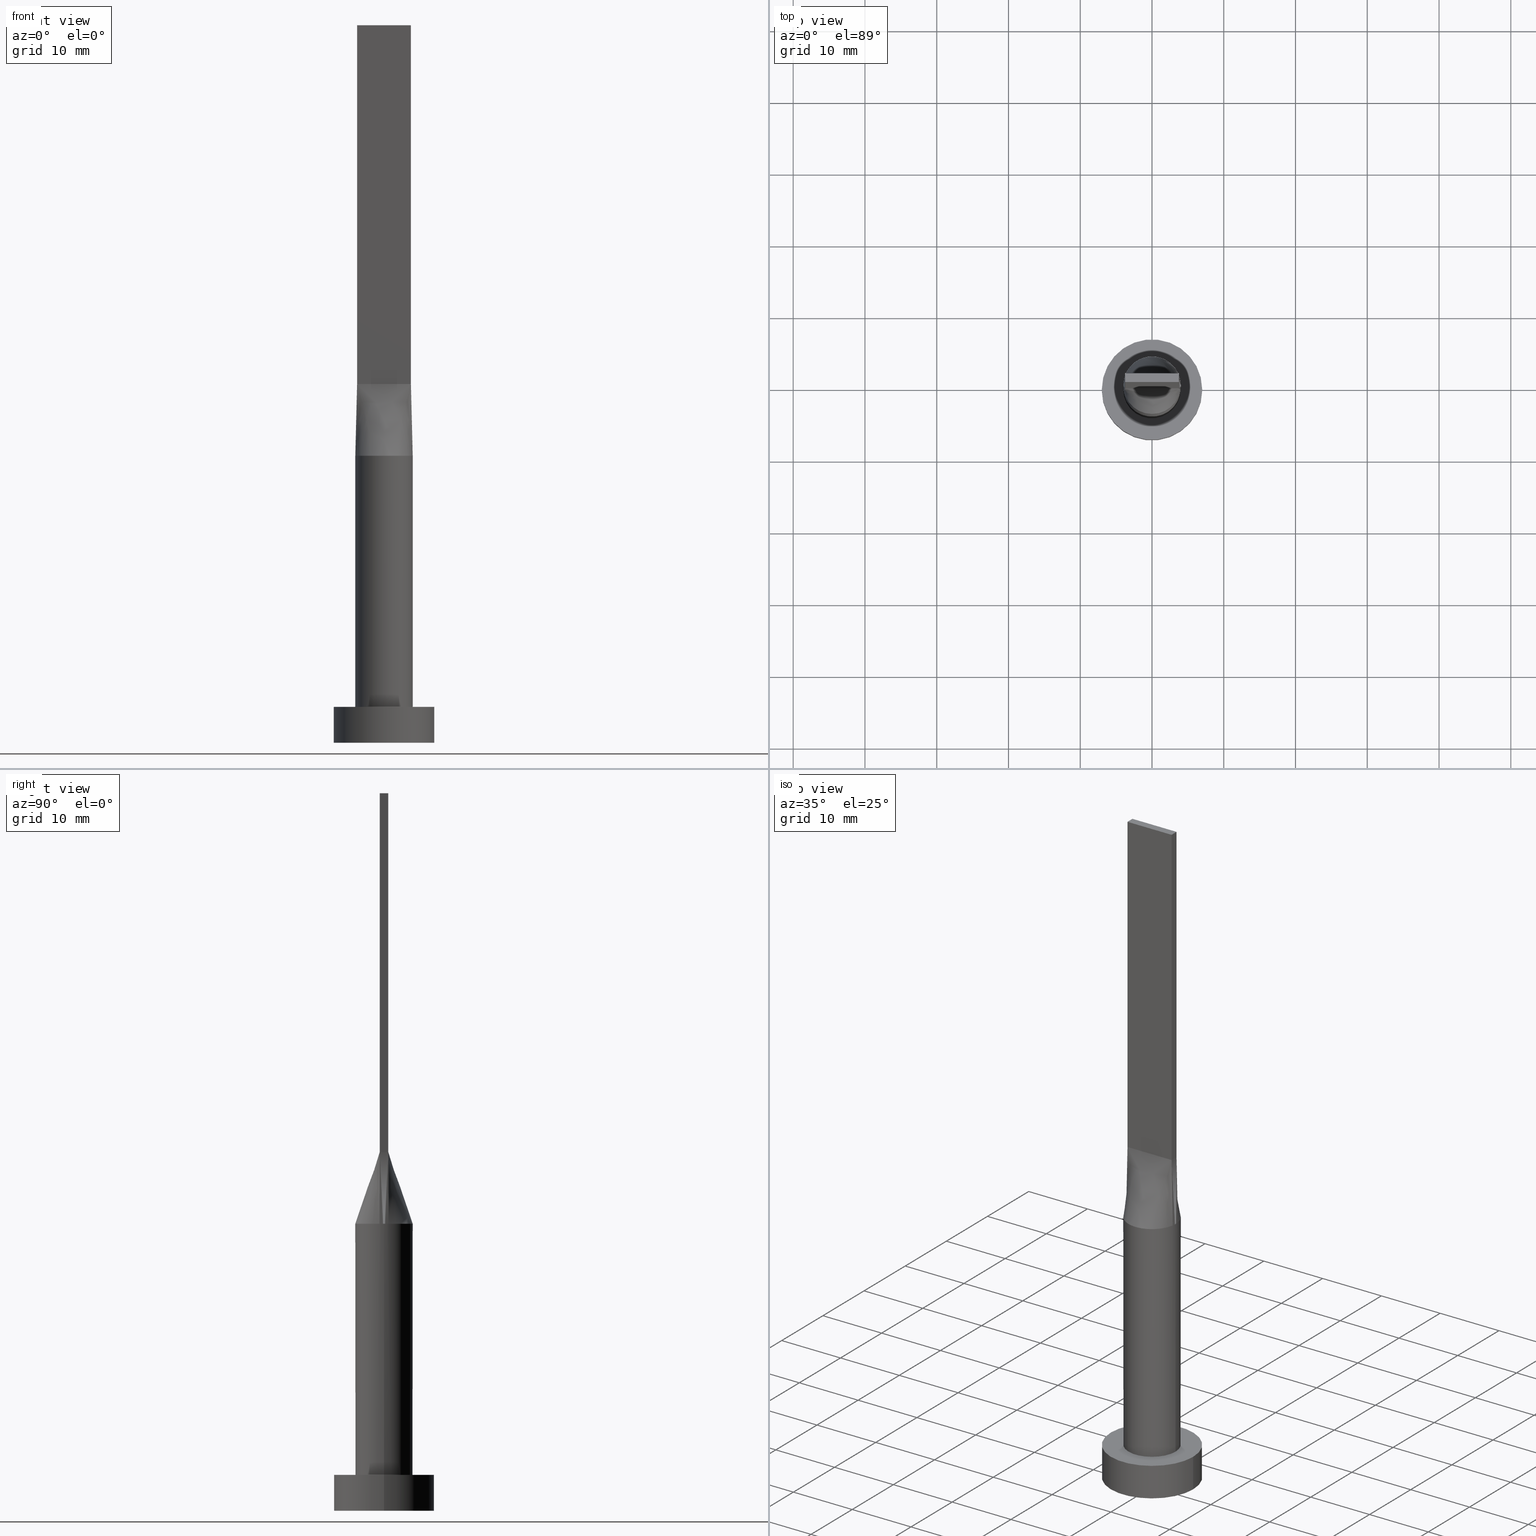
[diagram: canonical four-view strip — front | top / right | iso, engineering-drawing reading convention]
A machine part, canonical four-view strip (front | top / right | iso — engineering-drawing reading convention). The complete STEP part file that produces these views, byte-faithful:
ISO-10303-21;
HEADER;
FILE_DESCRIPTION (( 'STEP AP203' ),
    '1' );
FILE_NAME ('304e.STEP',
    '2023-02-13T09:38:19',
    ( '' ),
    ( '' ),
    'SwSTEP 2.0',
    'SolidWorks 2019',
    '' );
FILE_SCHEMA (( 'CONFIG_CONTROL_DESIGN' ));
ENDSEC;

DATA;
#1 = ORIENTED_EDGE ( 'NONE', *, *, #161, .F. ) ;
#2 = CARTESIAN_POINT ( 'NONE',  ( 3.461914487322979017, 2.043998057340944197, 40.00000000000000000 ) ) ;
#3 =( NAMED_UNIT ( * ) PLANE_ANGLE_UNIT ( ) SI_UNIT ( $, .RADIAN. ) );
#4 = CARTESIAN_POINT ( 'NONE',  ( -2.553164211252348714, 3.116528153703943538, 39.99999999999999289 ) ) ;
#5 = AXIS2_PLACEMENT_3D ( 'NONE', #193, #232, #409 ) ;
#6 = ORIENTED_EDGE ( 'NONE', *, *, #55, .T. ) ;
#7 = CARTESIAN_POINT ( 'NONE',  ( 0.000000000000000000, 0.000000000000000000, 5.000000000000000000 ) ) ;
#8 = CARTESIAN_POINT ( 'NONE',  ( 3.950116941581656604, -0.6320178829360038053, 40.00000000000000000 ) ) ;
#9 = ADVANCED_FACE ( 'NONE', ( #126 ), #31, .T. ) ;
#10 = EDGE_LOOP ( 'NONE', ( #465, #467, #66, #569 ) ) ;
#11 = DIRECTION ( 'NONE',  ( -0.000000000000000000, -0.000000000000000000, -1.000000000000000000 ) ) ;
#12 = EDGE_LOOP ( 'NONE', ( #28, #369, #140, #553, #338, #149 ) ) ;
#13 = CARTESIAN_POINT ( 'NONE',  ( 3.897760447583618948, 0.9569750049467118380, 40.00000000000000000 ) ) ;
#14 = CARTESIAN_POINT ( 'NONE',  ( 3.800365609718893367, -1.311488165564686614, 40.00000000000001421 ) ) ;
#15 = CIRCLE ( 'NONE', #56, 7.000000000000000000 ) ;
#16 = VERTEX_POINT ( 'NONE', #352 ) ;
#17 = FACE_OUTER_BOUND ( 'NONE', #10, .T. ) ;
#18 = EDGE_CURVE ( 'NONE', #109, #62, #484, .T. ) ;
#19 = CARTESIAN_POINT ( 'NONE',  ( 0.6250000000000017764, -0.5999999999999995337, 50.00000000000000000 ) ) ;
#20 = ORIENTED_EDGE ( 'NONE', *, *, #396, .F. ) ;
#21 = CARTESIAN_POINT ( 'NONE',  ( -2.553164211252349158, -3.116528153703943094, 40.00000000000000711 ) ) ;
#22 = SECURITY_CLASSIFICATION_LEVEL ( 'unclassified' ) ;
#23 = CARTESIAN_POINT ( 'NONE',  ( -3.999684524546696096, 0.2119768420469390069, 40.00000000000000000 ) ) ;
#24 = DIRECTION ( 'NONE',  ( -1.000000000000000000, 0.000000000000000000, 0.000000000000000000 ) ) ;
#25 = AXIS2_PLACEMENT_3D ( 'NONE', #70, #375, #515 ) ;
#26 = DIRECTION ( 'NONE',  ( -0.000000000000000000, 0.000000000000000000, -1.000000000000000000 ) ) ;
#27 = CARTESIAN_POINT ( 'NONE',  ( -3.461914487322979905, 2.043998057340944197, 40.00000000000000711 ) ) ;
#28 = ORIENTED_EDGE ( 'NONE', *, *, #289, .F. ) ;
#29 = DATE_AND_TIME ( #155, #292 ) ;
#30 = CARTESIAN_POINT ( 'NONE',  ( 0.000000000000000000, 0.000000000000000000, 0.000000000000000000 ) ) ;
#31 = CYLINDRICAL_SURFACE ( 'NONE', #154, 7.000000000000000000 ) ;
#32 = APPROVAL_DATE_TIME ( #523, #555 ) ;
#33 = CARTESIAN_POINT ( 'NONE',  ( 1.562499999999994893, 0.6000000000000000888, 50.00000000000000000 ) ) ;
#34 = AXIS2_PLACEMENT_3D ( 'NONE', #213, #529, #389 ) ;
#35 = CC_DESIGN_APPROVAL ( #495, ( #191 ) ) ;
#36 = CARTESIAN_POINT ( 'NONE',  ( 3.750000000000000000, 0.6000000000000001998, 100.0000000000000000 ) ) ;
#37 = CARTESIAN_POINT ( 'NONE',  ( 7.000000000000000000, 8.572527594031473190E-16, 0.000000000000000000 ) ) ;
#38 = VERTEX_POINT ( 'NONE', #346 ) ;
#39 = ORIENTED_EDGE ( 'NONE', *, *, #144, .F. ) ;
#40 = CARTESIAN_POINT ( 'NONE',  ( 3.750000000000000000, 0.6000000000000001998, 100.0000000000000000 ) ) ;
#41 = DIRECTION ( 'NONE',  ( 0.000000000000000000, 0.000000000000000000, 1.000000000000000000 ) ) ;
#42 = EDGE_CURVE ( 'NONE', #57, #52, #522, .T. ) ;
#43 = AXIS2_PLACEMENT_3D ( 'NONE', #79, #415, #539 ) ;
#44 = AXIS2_PLACEMENT_3D ( 'NONE', #344, #168, #525 ) ;
#45 = CARTESIAN_POINT ( 'NONE',  ( -3.750000000000000000, 0.6000000000000001998, 100.0000000000000000 ) ) ;
#46 = CC_DESIGN_SECURITY_CLASSIFICATION ( #272, ( #476 ) ) ;
#47 = CARTESIAN_POINT ( 'NONE',  ( 0.000000000000000000, 0.000000000000000000, 40.00000000000000000 ) ) ;
#48 = CARTESIAN_POINT ( 'NONE',  ( 3.897760447583618948, 0.9569750049467118380, 40.00000000000000000 ) ) ;
#49 = ORIENTED_EDGE ( 'NONE', *, *, #173, .F. ) ;
#50 = PERSON_AND_ORGANIZATION ( #83, #103 ) ;
#51 = CARTESIAN_POINT ( 'NONE',  ( 3.849881263833410561, -0.6159810022133445084, 45.00000000000000000 ) ) ;
#52 = VERTEX_POINT ( 'NONE', #215 ) ;
#53 = DIRECTION ( 'NONE',  ( 1.000000000000000000, 0.000000000000000000, -0.000000000000000000 ) ) ;
#54 = CARTESIAN_POINT ( 'NONE',  ( -3.750000000000000000, 0.6000000000000001998, 50.00000000000000000 ) ) ;
#55 = EDGE_CURVE ( 'NONE', #16, #458, #291, .T. ) ;
#56 = AXIS2_PLACEMENT_3D ( 'NONE', #223, #271, #455 ) ;
#57 = VERTEX_POINT ( 'NONE', #482 ) ;
#58 = PERSON_AND_ORGANIZATION ( #83, #103 ) ;
#59 = DIRECTION ( 'NONE',  ( -1.000000000000000000, 0.000000000000000000, 0.000000000000000000 ) ) ;
#60 = VERTEX_POINT ( 'NONE', #345 ) ;
#61 = CARTESIAN_POINT ( 'NONE',  ( 3.461914487322980349, -2.043998057340943753, 40.00000000000002842 ) ) ;
#62 = VERTEX_POINT ( 'NONE', #129 ) ;
#63 = EDGE_CURVE ( 'NONE', #243, #531, #395, .T. ) ;
#64 = PLANE ( 'NONE',  #255 ) ;
#65 = VECTOR ( 'NONE', #445, 1000.000000000000000 ) ;
#66 = ORIENTED_EDGE ( 'NONE', *, *, #365, .F. ) ;
#67 = CARTESIAN_POINT ( 'NONE',  ( -3.897760447583618948, -0.9569750049467102837, 40.00000000000000000 ) ) ;
#68 = PRODUCT_DEFINITION_SHAPE ( 'NONE', 'NONE',  #191 ) ;
#69 = ORIENTED_EDGE ( 'NONE', *, *, #18, .F. ) ;
#70 = CARTESIAN_POINT ( 'NONE',  ( 0.000000000000000000, 0.000000000000000000, 5.000000000000000000 ) ) ;
#71 = COORDINATED_UNIVERSAL_TIME_OFFSET ( 1, 0, .AHEAD. ) ;
#72 = CARTESIAN_POINT ( 'NONE',  ( 0.3124999999999934497, 0.6000000000000000888, 50.00000000000000711 ) ) ;
#73 = CARTESIAN_POINT ( 'NONE',  ( 0.3125000000000016098, -0.5999999999999995337, 50.00000000000000000 ) ) ;
#74 = EDGE_CURVE ( 'NONE', #38, #531, #399, .T. ) ;
#75 = CARTESIAN_POINT ( 'NONE',  ( -3.125000000000000888, 0.6000000000000000888, 50.00000000000000000 ) ) ;
#76 = CC_DESIGN_APPROVAL ( #182, ( #476 ) ) ;
#77 = DIRECTION ( 'NONE',  ( 0.000000000000000000, 0.000000000000000000, 1.000000000000000000 ) ) ;
#78 = CARTESIAN_POINT ( 'NONE',  ( -3.437500000000000444, 0.6000000000000000888, 50.00000000000000000 ) ) ;
#79 = CARTESIAN_POINT ( 'NONE',  ( 0.000000000000000000, 0.000000000000000000, 0.000000000000000000 ) ) ;
#80 = CC_DESIGN_DATE_AND_TIME_ASSIGNMENT ( #322, #132, ( #191 ) ) ;
#81 = DIRECTION ( 'NONE',  ( 0.000000000000000000, 0.000000000000000000, 1.000000000000000000 ) ) ;
#82 = CARTESIAN_POINT ( 'NONE',  ( -3.750000000000000000, -0.5999999999999993117, 50.00000000000000000 ) ) ;
#83 = PERSON ( 'NEUR�EN�', 'NEUR�EN�', 'NEUR�EN�', ('NEUR�EN�'), ('NEUR�EN�'), ('NEUR�EN�') ) ;
#84 = CARTESIAN_POINT ( 'NONE',  ( 2.499999999999996003, 0.6000000000000000888, 50.00000000000000000 ) ) ;
#85 = AXIS2_PLACEMENT_3D ( 'NONE', #544, #496, #189 ) ;
#86 = APPROVAL_PERSON_ORGANIZATION ( #313, #182, #152 ) ;
#87 = CARTESIAN_POINT ( 'NONE',  ( 4.000000000000000000, 4.898587196589412829E-16, 5.000000000000000000 ) ) ;
#88 = MECHANICAL_CONTEXT ( 'NONE', #127, 'mechanical' ) ;
#89 = PLANE ( 'NONE',  #363 ) ;
#90 = CARTESIAN_POINT ( 'NONE',  ( 3.949762527666821565, -0.6319620044266909265, 40.00000000000000000 ) ) ;
#91 = CC_DESIGN_PERSON_AND_ORGANIZATION_ASSIGNMENT ( #532, #362, ( #191 ) ) ;
#92 = ORIENTED_EDGE ( 'NONE', *, *, #546, .T. ) ;
#93 = DIRECTION ( 'NONE',  ( -0.000000000000000000, -0.000000000000000000, -1.000000000000000000 ) ) ;
#94 = VERTEX_POINT ( 'NONE', #87 ) ;
#95 = LINE ( 'NONE', #405, #373 ) ;
#96 = APPROVAL_PERSON_ORGANIZATION ( #50, #495, #534 ) ;
#97 = CARTESIAN_POINT ( 'NONE',  ( 2.553164211252348714, 3.116528153703943538, 40.00000000000000000 ) ) ;
#98 = CARTESIAN_POINT ( 'NONE',  ( -1.134810363096319996, 3.874001625491799938, 40.00000000000000711 ) ) ;
#99 = CC_DESIGN_PERSON_AND_ORGANIZATION_ASSIGNMENT ( #219, #397, ( #125 ) ) ;
#100 = CARTESIAN_POINT ( 'NONE',  ( 1.134810363096318664, 3.874001625491799050, 40.00000000000000000 ) ) ;
#101 = EDGE_LOOP ( 'NONE', ( #142, #221, #401, #240 ) ) ;
#102 = DIRECTION ( 'NONE',  ( -0.000000000000000000, -0.000000000000000000, -1.000000000000000000 ) ) ;
#103 = ORGANIZATION ( 'NEUR�EN�', 'NEUR�EN�', '' ) ;
#104 = ORIENTED_EDGE ( 'NONE', *, *, #254, .F. ) ;
#105 = PERSON_AND_ORGANIZATION_ROLE ( 'classification_officer' ) ;
#106 = CARTESIAN_POINT ( 'NONE',  ( 1.562500000000001776, -0.5999999999999996447, 50.00000000000000000 ) ) ;
#107 = ORIENTED_EDGE ( 'NONE', *, *, #228, .T. ) ;
#108 = CARTESIAN_POINT ( 'NONE',  ( -3.949762527666821565, -0.6319620044266894832, 40.00000000000000000 ) ) ;
#109 = VERTEX_POINT ( 'NONE', #574 ) ;
#110 = APPROVAL_STATUS ( 'not_yet_approved' ) ;
#111 = CARTESIAN_POINT ( 'NONE',  ( -7.000000000000000000, 0.000000000000000000, 5.000000000000000000 ) ) ;
#112 = VECTOR ( 'NONE', #153, 1000.000000000000000 ) ;
#113 = ORIENTED_EDGE ( 'NONE', *, *, #228, .F. ) ;
#114 = CYLINDRICAL_SURFACE ( 'NONE', #262, 7.000000000000000000 ) ;
#115 = CARTESIAN_POINT ( 'NONE',  ( -0.6249999999999978906, -0.5999999999999994227, 50.00000000000000000 ) ) ;
#116 = B_SPLINE_SURFACE_WITH_KNOTS ( 'NONE', 3, 1, ( 
 ( #90, #572 ),
 ( #356, #470 ),
 ( #443, #386 ),
 ( #177, #131 ),
 ( #312, #488 ),
 ( #577, #425 ) ),
 .UNSPECIFIED., .F., .F., .F.,
 ( 4, 2, 4 ),
 ( 2, 2 ),
 ( 0.000000000000000000, 0.5000000000000000000, 1.000000000000000000 ),
 ( 0.000000000000000000, 1.000000000000000000 ),
 .UNSPECIFIED. ) ;
#117 = CARTESIAN_POINT ( 'NONE',  ( -3.983043858920071845, 0.4239536840938776252, 40.00000000000000000 ) ) ;
#118 = EDGE_CURVE ( 'NONE', #450, #57, #257, .T. ) ;
#119 = PLANE ( 'NONE',  #225 ) ;
#120 = DIRECTION ( 'NONE',  ( 0.000000000000000000, -0.000000000000000000, -1.000000000000000000 ) ) ;
#121 = VECTOR ( 'NONE', #413, 1000.000000000000000 ) ;
#122 = AXIS2_PLACEMENT_3D ( 'NONE', #180, #444, #491 ) ;
#123 = CARTESIAN_POINT ( 'NONE',  ( -3.849881263833410561, -0.6159810022133443974, 45.00000000000000000 ) ) ;
#124 = ADVANCED_FACE ( 'NONE', ( #172 ), #116, .T. ) ;
#125 = PRODUCT ( '304e', '304e', '', ( #88 ) ) ;
#126 = FACE_OUTER_BOUND ( 'NONE', #359, .T. ) ;
#127 = APPLICATION_CONTEXT ( 'configuration controlled 3d designs of mechanical parts and assemblies' ) ;
#128 = CARTESIAN_POINT ( 'NONE',  ( -2.187500000000003109, 0.6000000000000000888, 50.00000000000000000 ) ) ;
#129 = CARTESIAN_POINT ( 'NONE',  ( 3.950097303404373150, 0.6320148730971616446, 40.00000000000000000 ) ) ;
#130 = AXIS2_PLACEMENT_3D ( 'NONE', #519, #306, #120 ) ;
#131 = CARTESIAN_POINT ( 'NONE',  ( 3.749999999999999556, 0.2000000000000007883, 50.00000000000000000 ) ) ;
#132 = DATE_TIME_ROLE ( 'creation_date' ) ;
#133 = CARTESIAN_POINT ( 'NONE',  ( 0.000000000000000000, 0.000000000000000000, 5.000000000000000000 ) ) ;
#134 = CARTESIAN_POINT ( 'NONE',  ( -3.750000000000000000, -0.5999999999999993117, 50.00000000000000000 ) ) ;
#135 = CIRCLE ( 'NONE', #44, 4.000000000000000000 ) ;
#136 = LINE ( 'NONE', #51, #121 ) ;
#137 = CC_DESIGN_DATE_AND_TIME_ASSIGNMENT ( #29, #308, ( #272 ) ) ;
#138 = CALENDAR_DATE ( 2023, 13, 2 ) ;
#139 = CARTESIAN_POINT ( 'NONE',  ( -2.127794970397209884, 3.430476893735948440, 39.99999999999999289 ) ) ;
#140 = ORIENTED_EDGE ( 'NONE', *, *, #527, .F. ) ;
#141 = LINE ( 'NONE', #326, #205 ) ;
#142 = ORIENTED_EDGE ( 'NONE', *, *, #527, .T. ) ;
#143 = DIRECTION ( 'NONE',  ( -1.000000000000000000, 0.000000000000000000, 0.000000000000000000 ) ) ;
#144 = EDGE_CURVE ( 'NONE', #243, #190, #520, .T. ) ;
#145 = CARTESIAN_POINT ( 'NONE',  ( -0.5684794080625156232, -4.000000000000000000, 39.99999999999999289 ) ) ;
#146 = AXIS2_PLACEMENT_3D ( 'NONE', #558, #464, #290 ) ;
#147 = ORIENTED_EDGE ( 'NONE', *, *, #55, .F. ) ;
#148 = CARTESIAN_POINT ( 'NONE',  ( 3.750000000000000000, -0.5999999999999997558, 100.0000000000000000 ) ) ;
#149 = ORIENTED_EDGE ( 'NONE', *, *, #334, .T. ) ;
#150 = PERSON_AND_ORGANIZATION_ROLE ( 'design_supplier' ) ;
#151 = VERTEX_POINT ( 'NONE', #479 ) ;
#152 = APPROVAL_ROLE ( '' ) ;
#153 = DIRECTION ( 'NONE',  ( 0.000000000000000000, 1.000000000000000000, 0.000000000000000000 ) ) ;
#154 = AXIS2_PLACEMENT_3D ( 'NONE', #307, #533, #485 ) ;
#155 = CALENDAR_DATE ( 2023, 13, 2 ) ;
#156 = CARTESIAN_POINT ( 'NONE',  ( -3.999684524546696096, -0.2119768420469381465, 40.00000000000000000 ) ) ;
#157 = DIRECTION ( 'NONE',  ( -0.000000000000000000, -0.000000000000000000, -1.000000000000000000 ) ) ;
#158 = CARTESIAN_POINT ( 'NONE',  ( -2.553164211252348714, 3.116528153703943538, 39.99999999999999289 ) ) ;
#159 = DIRECTION ( 'NONE',  ( 1.000000000000000000, 0.000000000000000000, -0.000000000000000000 ) ) ;
#160 = FACE_OUTER_BOUND ( 'NONE', #506, .T. ) ;
#161 = EDGE_CURVE ( 'NONE', #414, #556, #261, .T. ) ;
#162 = DIRECTION ( 'NONE',  ( 1.000000000000000000, 0.000000000000000000, 0.000000000000000000 ) ) ;
#163 = VECTOR ( 'NONE', #547, 1000.000000000000000 ) ;
#164 = CARTESIAN_POINT ( 'NONE',  ( -2.500000000000002665, 0.6000000000000000888, 50.00000000000000000 ) ) ;
#165 = ORIENTED_EDGE ( 'NONE', *, *, #118, .T. ) ;
#166 = CARTESIAN_POINT ( 'NONE',  ( 3.800365609718893367, 1.311488165564687058, 40.00000000000000711 ) ) ;
#167 = B_SPLINE_SURFACE_WITH_KNOTS ( 'NONE', 3, 1, ( 
 ( #108, #469 ),
 ( #67, #466 ),
 ( #431, #249 ),
 ( #207, #424 ),
 ( #339, #514 ),
 ( #21, #295 ),
 ( #297, #245 ),
 ( #204, #115 ),
 ( #145, #422 ),
 ( #284, #73 ),
 ( #472, #19 ),
 ( #342, #377 ),
 ( #505, #106 ),
 ( #199, #337 ),
 ( #61, #252 ),
 ( #14, #428 ),
 ( #381, #552 ),
 ( #561, #554 ) ),
 .UNSPECIFIED., .F., .F., .F.,
 ( 4, 2, 2, 2, 2, 2, 2, 2, 4 ),
 ( 2, 2 ),
 ( 0.000000000000000000, 0.1250000000000000555, 0.2500000000000001110, 0.3750000000000001665, 0.5000000000000001110, 0.6250000000000001110, 0.7500000000000001110, 0.8750000000000000000, 1.000000000000000000 ),
 ( 0.000000000000000000, 1.000000000000000000 ),
 .UNSPECIFIED. ) ;
#168 = DIRECTION ( 'NONE',  ( 0.000000000000000000, 0.000000000000000000, 1.000000000000000000 ) ) ;
#169 = EDGE_LOOP ( 'NONE', ( #260, #420, #20, #499 ) ) ;
#170 = EDGE_LOOP ( 'NONE', ( #69, #462, #423, #194, #404, #104 ) ) ;
#171 = APPLICATION_CONTEXT ( 'configuration controlled 3d designs of mechanical parts and assemblies' ) ;
#172 = FACE_OUTER_BOUND ( 'NONE', #350, .T. ) ;
#173 = EDGE_CURVE ( 'NONE', #222, #243, #323, .T. ) ;
#174 = DATE_AND_TIME ( #183, #319 ) ;
#175 = VECTOR ( 'NONE', #250, 1000.000000000000000 ) ;
#176 = CC_DESIGN_APPROVAL ( #555, ( #272 ) ) ;
#177 = CARTESIAN_POINT ( 'NONE',  ( 3.999684524546696540, 0.2119768420469383408, 40.00000000000000000 ) ) ;
#178 = ORIENTED_EDGE ( 'NONE', *, *, #365, .T. ) ;
#179 = CARTESIAN_POINT ( 'NONE',  ( 3.219262664220058134, 2.422342486356523938, 39.99999999999999289 ) ) ;
#180 = CARTESIAN_POINT ( 'NONE',  ( 0.000000000000000000, 0.000000000000000000, 0.000000000000000000 ) ) ;
#181 = CARTESIAN_POINT ( 'NONE',  ( 2.127794970397208107, 3.430476893735948885, 39.99999999999999289 ) ) ;
#182 = APPROVAL ( #110, 'NEUR�EN�' ) ;
#183 = CALENDAR_DATE ( 2023, 13, 2 ) ;
#184 = VECTOR ( 'NONE', #309, 1000.000000000000000 ) ;
#185 = VECTOR ( 'NONE', #481, 1000.000000000000000 ) ;
#186 = DIRECTION ( 'NONE',  ( 0.000000000000000000, 0.000000000000000000, 1.000000000000000000 ) ) ;
#187 = EDGE_LOOP ( 'NONE', ( #324, #579, #335, #165 ) ) ;
#188 = PLANE ( 'NONE',  #383 ) ;
#189 = DIRECTION ( 'NONE',  ( 1.000000000000000000, 0.000000000000000000, 0.000000000000000000 ) ) ;
#190 = VERTEX_POINT ( 'NONE', #451 ) ;
#191 = PRODUCT_DEFINITION ( 'NEZN�M�', '', #476, #408 ) ;
#192 = CARTESIAN_POINT ( 'NONE',  ( 3.750000000000000000, -0.5999999999999997558, 100.0000000000000000 ) ) ;
#193 = CARTESIAN_POINT ( 'NONE',  ( 0.000000000000000000, 0.000000000000000000, 0.000000000000000000 ) ) ;
#194 = ORIENTED_EDGE ( 'NONE', *, *, #536, .F. ) ;
#195 = CARTESIAN_POINT ( 'NONE',  ( 3.437499999999998668, 0.6000000000000001998, 50.00000000000000000 ) ) ;
#196 = LINE ( 'NONE', #148, #112 ) ;
#197 = EDGE_LOOP ( 'NONE', ( #502, #49, #331, #446 ) ) ;
#198 = PERSON_AND_ORGANIZATION ( #83, #103 ) ;
#199 = CARTESIAN_POINT ( 'NONE',  ( 3.219262664220059023, -2.422342486356523938, 40.00000000000000711 ) ) ;
#200 = ORIENTED_EDGE ( 'NONE', *, *, #270, .T. ) ;
#201 = DIRECTION ( 'NONE',  ( -1.000000000000000000, 0.000000000000000000, 0.000000000000000000 ) ) ;
#202 = ADVANCED_FACE ( 'NONE', ( #235 ), #358, .T. ) ;
#203 = DIRECTION ( 'NONE',  ( -0.000000000000000000, -0.000000000000000000, -1.000000000000000000 ) ) ;
#204 = CARTESIAN_POINT ( 'NONE',  ( -1.134810363096319996, -3.874001625491796830, 39.99999999999999289 ) ) ;
#205 = VECTOR ( 'NONE', #102, 1000.000000000000000 ) ;
#206 = CIRCLE ( 'NONE', #25, 4.000000000000000000 ) ;
#207 = CARTESIAN_POINT ( 'NONE',  ( -3.461914487322979905, -2.043998057340941976, 40.00000000000000000 ) ) ;
#208 = CC_DESIGN_PERSON_AND_ORGANIZATION_ASSIGNMENT ( #58, #105, ( #272 ) ) ;
#209 = CARTESIAN_POINT ( 'NONE',  ( 1.134810363096318664, 3.874001625491799050, 40.00000000000000000 ) ) ;
#210 = CARTESIAN_POINT ( 'NONE',  ( -3.750000000000000000, 0.6000000000000001998, 50.00000000000000000 ) ) ;
#211 = CARTESIAN_POINT ( 'NONE',  ( 2.127794970397208107, 3.430476893735948885, 39.99999999999999289 ) ) ;
#212 = DIRECTION ( 'NONE',  ( -0.000000000000000000, 1.000000000000000000, -0.000000000000000000 ) ) ;
#213 = CARTESIAN_POINT ( 'NONE',  ( 0.000000000000000000, 0.000000000000000000, 40.00000000000000000 ) ) ;
#214 = CARTESIAN_POINT ( 'NONE',  ( -1.250000000000004663, 0.6000000000000000888, 50.00000000000000000 ) ) ;
#215 = CARTESIAN_POINT ( 'NONE',  ( -3.750000000000000000, 0.6000000000000001998, 50.00000000000000000 ) ) ;
#216 = CARTESIAN_POINT ( 'NONE',  ( 2.187499999999996003, 0.6000000000000000888, 50.00000000000000000 ) ) ;
#217 = EDGE_LOOP ( 'NONE', ( #510, #200, #39, #279, #293 ) ) ;
#218 = ADVANCED_FACE ( 'NONE', ( #314 ), #229, .T. ) ;
#219 = PERSON_AND_ORGANIZATION ( #83, #103 ) ;
#220 = PLANE ( 'NONE',  #130 ) ;
#221 = ORIENTED_EDGE ( 'NONE', *, *, #248, .T. ) ;
#222 = VERTEX_POINT ( 'NONE', #498 ) ;
#223 = CARTESIAN_POINT ( 'NONE',  ( 0.000000000000000000, 0.000000000000000000, 5.000000000000000000 ) ) ;
#224 = VECTOR ( 'NONE', #439, 1000.000000000000000 ) ;
#225 = AXIS2_PLACEMENT_3D ( 'NONE', #380, #474, #26 ) ;
#226 = DIRECTION ( 'NONE',  ( 0.01997216621675832263, -0.003195546594681204517, 0.9997954296047624201 ) ) ;
#227 = DIRECTION ( 'NONE',  ( 0.000000000000000000, 0.000000000000000000, 1.000000000000000000 ) ) ;
#228 = EDGE_CURVE ( 'NONE', #556, #414, #317, .T. ) ;
#229 = CYLINDRICAL_SURFACE ( 'NONE', #421, 4.000000000000000000 ) ;
#230 = VERTEX_POINT ( 'NONE', #456 ) ;
#231 = APPROVAL_STATUS ( 'not_yet_approved' ) ;
#232 = DIRECTION ( 'NONE',  ( 0.000000000000000000, 0.000000000000000000, 1.000000000000000000 ) ) ;
#233 = ORIENTED_EDGE ( 'NONE', *, *, #396, .T. ) ;
#234 = VECTOR ( 'NONE', #226, 1000.000000000000000 ) ;
#235 = FACE_OUTER_BOUND ( 'NONE', #351, .T. ) ;
#236 = ORIENTED_EDGE ( 'NONE', *, *, #18, .T. ) ;
#237 = CARTESIAN_POINT ( 'NONE',  ( -3.750000000000000000, -0.5999999999999993117, 50.00000000000000000 ) ) ;
#238 = LINE ( 'NONE', #45, #459 ) ;
#239 = EDGE_CURVE ( 'NONE', #52, #243, #535, .T. ) ;
#240 = ORIENTED_EDGE ( 'NONE', *, *, #144, .T. ) ;
#241 = CARTESIAN_POINT ( 'NONE',  ( 3.949762527666821565, 0.6319620044266911485, 40.00000000000000000 ) ) ;
#242 = CARTESIAN_POINT ( 'NONE',  ( -3.750000000000000000, -0.5999999999999993117, 100.0000000000000000 ) ) ;
#243 = VERTEX_POINT ( 'NONE', #134 ) ;
#244 = DATE_AND_TIME ( #511, #540 ) ;
#245 = CARTESIAN_POINT ( 'NONE',  ( -1.249999999999997558, -0.5999999999999994227, 50.00000000000000000 ) ) ;
#246 = VECTOR ( 'NONE', #212, 1000.000000000000000 ) ;
#247 = ORIENTED_EDGE ( 'NONE', *, *, #546, .F. ) ;
#248 = EDGE_CURVE ( 'NONE', #267, #531, #136, .T. ) ;
#249 = CARTESIAN_POINT ( 'NONE',  ( -3.124999999999999112, -0.5999999999999993117, 50.00000000000000000 ) ) ;
#250 = DIRECTION ( 'NONE',  ( -1.000000000000000000, -0.000000000000000000, -0.000000000000000000 ) ) ;
#251 = CARTESIAN_POINT ( 'NONE',  ( -3.949762527666821565, 0.6319620044266903713, 40.00000000000000000 ) ) ;
#252 = CARTESIAN_POINT ( 'NONE',  ( 2.500000000000000444, -0.5999999999999996447, 50.00000000000000000 ) ) ;
#253 = FACE_OUTER_BOUND ( 'NONE', #101, .T. ) ;
#254 = EDGE_CURVE ( 'NONE', #62, #230, #494, .T. ) ;
#255 = AXIS2_PLACEMENT_3D ( 'NONE', #242, #507, #286 ) ;
#256 = CARTESIAN_POINT ( 'NONE',  ( 7.000000000000000000, 8.572527594031473190E-16, 5.000000000000000000 ) ) ;
#257 = LINE ( 'NONE', #36, #549 ) ;
#258 = APPROVAL_STATUS ( 'not_yet_approved' ) ;
#259 = CARTESIAN_POINT ( 'NONE',  ( -3.750000000000000000, 0.6000000000000001998, 100.0000000000000000 ) ) ;
#260 = ORIENTED_EDGE ( 'NONE', *, *, #63, .T. ) ;
#261 = CIRCLE ( 'NONE', #43, 7.000000000000000000 ) ;
#262 = AXIS2_PLACEMENT_3D ( 'NONE', #328, #203, #201 ) ;
#263 = CARTESIAN_POINT ( 'NONE',  ( -0.6250000000000056621, 0.6000000000000000888, 50.00000000000000000 ) ) ;
#264 = DIRECTION ( 'NONE',  ( -0.000000000000000000, -0.000000000000000000, -1.000000000000000000 ) ) ;
#265 = LINE ( 'NONE', #571, #65 ) ;
#266 = ORIENTED_EDGE ( 'NONE', *, *, #315, .T. ) ;
#267 = VERTEX_POINT ( 'NONE', #8 ) ;
#268 = CARTESIAN_POINT ( 'NONE',  ( -3.750000000000000000, 0.6000000000000001998, 50.00000000000000000 ) ) ;
#269 = LINE ( 'NONE', #449, #234 ) ;
#270 = EDGE_CURVE ( 'NONE', #60, #190, #457, .T. ) ;
#271 = DIRECTION ( 'NONE',  ( 0.000000000000000000, 0.000000000000000000, 1.000000000000000000 ) ) ;
#272 = SECURITY_CLASSIFICATION ( '', '', #22 ) ;
#273 = CARTESIAN_POINT ( 'NONE',  ( -3.461914487322979905, 2.043998057340944197, 40.00000000000000711 ) ) ;
#274 = ORIENTED_EDGE ( 'NONE', *, *, #384, .T. ) ;
#275 = APPLICATION_PROTOCOL_DEFINITION ( 'international standard', 'config_control_design', 1994, #127 ) ;
#276 = CYLINDRICAL_SURFACE ( 'NONE', #503, 4.000000000000000000 ) ;
#277 =( NAMED_UNIT ( * ) SI_UNIT ( $, .STERADIAN. ) SOLID_ANGLE_UNIT ( ) );
#278 = CARTESIAN_POINT ( 'NONE',  ( -3.897760447583618504, 0.9569750049467115049, 40.00000000000000000 ) ) ;
#279 = ORIENTED_EDGE ( 'NONE', *, *, #239, .F. ) ;
#280 = APPROVAL_DATE_TIME ( #244, #182 ) ;
#281 = CARTESIAN_POINT ( 'NONE',  ( -3.750000000000000000, -0.5999999999999993117, 100.0000000000000000 ) ) ;
#282 = ADVANCED_FACE ( 'NONE', ( #371 ), #276, .T. ) ;
#283 = ORIENTED_EDGE ( 'NONE', *, *, #384, .F. ) ;
#284 = CARTESIAN_POINT ( 'NONE',  ( 0.5684794080625150681, -4.000000000000000888, 40.00000000000000000 ) ) ;
#285 = ORIENTED_EDGE ( 'NONE', *, *, #42, .F. ) ;
#286 = DIRECTION ( 'NONE',  ( -1.000000000000000000, 5.782411586589358625E-17, 0.000000000000000000 ) ) ;
#287 = EDGE_LOOP ( 'NONE', ( #6, #92 ) ) ;
#288 = COORDINATED_UNIVERSAL_TIME_OFFSET ( 1, 0, .AHEAD. ) ;
#289 = EDGE_CURVE ( 'NONE', #109, #94, #141, .T. ) ;
#291 = CIRCLE ( 'NONE', #548, 7.000000000000000000 ) ;
#290 = DIRECTION ( 'NONE',  ( 1.000000000000000000, 0.000000000000000000, 0.000000000000000000 ) ) ;
#292 = LOCAL_TIME ( 10, 38, 19.00000000000000000, #288 ) ;
#293 = ORIENTED_EDGE ( 'NONE', *, *, #315, .F. ) ;
#294 = FACE_OUTER_BOUND ( 'NONE', #217, .T. ) ;
#295 = CARTESIAN_POINT ( 'NONE',  ( -1.562499999999998002, -0.5999999999999994227, 50.00000000000000000 ) ) ;
#296 = CARTESIAN_POINT ( 'NONE',  ( -3.983043858920070956, -0.4239536840938767370, 40.00000000000000000 ) ) ;
#297 = CARTESIAN_POINT ( 'NONE',  ( -2.127794970397209884, -3.430476893735947996, 40.00000000000000000 ) ) ;
#298 = EDGE_CURVE ( 'NONE', #437, #52, #238, .T. ) ;
#299 = CARTESIAN_POINT ( 'NONE',  ( -3.800365609718893811, 1.311488165564686392, 40.00000000000000000 ) ) ;
#300 = CARTESIAN_POINT ( 'NONE',  ( 3.849881263833410561, 0.6159810022133449525, 45.00000000000000000 ) ) ;
#301 = VECTOR ( 'NONE', #303, 1000.000000000000000 ) ;
#302 = CIRCLE ( 'NONE', #329, 4.000000000000000000 ) ;
#303 = DIRECTION ( 'NONE',  ( -0.01997216621675832263, -0.003195546594681204517, -0.9997954296047624201 ) ) ;
#304 = CALENDAR_DATE ( 2023, 13, 2 ) ;
#305 = CARTESIAN_POINT ( 'NONE',  ( -0.3125000000000063283, 0.6000000000000000888, 50.00000000000000711 ) ) ;
#306 = DIRECTION ( 'NONE',  ( 0.000000000000000000, -1.000000000000000000, 0.000000000000000000 ) ) ;
#307 = CARTESIAN_POINT ( 'NONE',  ( 0.000000000000000000, 0.000000000000000000, 5.000000000000000000 ) ) ;
#308 = DATE_TIME_ROLE ( 'classification_date' ) ;
#309 = DIRECTION ( 'NONE',  ( 1.000000000000000000, -5.782411586589357392E-17, 0.000000000000000000 ) ) ;
#310 = CARTESIAN_POINT ( 'NONE',  ( 0.6249999999999938938, 0.6000000000000000888, 50.00000000000000000 ) ) ;
#311 = FACE_OUTER_BOUND ( 'NONE', #411, .T. ) ;
#312 = CARTESIAN_POINT ( 'NONE',  ( 3.983043858920071845, 0.4239536840938771811, 40.00000000000000000 ) ) ;
#313 = PERSON_AND_ORGANIZATION ( #83, #103 ) ;
#314 = FACE_OUTER_BOUND ( 'NONE', #12, .T. ) ;
#315 = EDGE_CURVE ( 'NONE', #230, #52, #269, .T. ) ;
#316 = CARTESIAN_POINT ( 'NONE',  ( -0.5684794080625158452, 3.999999999999999112, 39.99999999999999289 ) ) ;
#317 = CIRCLE ( 'NONE', #5, 7.000000000000000000 ) ;
#318 = DIRECTION ( 'NONE',  ( -0.000000000000000000, -0.000000000000000000, -1.000000000000000000 ) ) ;
#319 = LOCAL_TIME ( 10, 38, 19.00000000000000000, #541 ) ;
#320 = CARTESIAN_POINT ( 'NONE',  ( -3.800365609718893811, 1.311488165564686392, 40.00000000000000000 ) ) ;
#321 = ADVANCED_BREP_SHAPE_REPRESENTATION ( '304e', ( #430, #122 ), #341 ) ;
#322 = DATE_AND_TIME ( #138, #513 ) ;
#323 = LINE ( 'NONE', #281, #163 ) ;
#324 = ORIENTED_EDGE ( 'NONE', *, *, #42, .T. ) ;
#325 = ADVANCED_FACE ( 'NONE', ( #330 ), #64, .F. ) ;
#326 = CARTESIAN_POINT ( 'NONE',  ( 4.000000000000000000, 4.898587196589412829E-16, 40.00000000000000000 ) ) ;
#327 = ORIENTED_EDGE ( 'NONE', *, *, #471, .F. ) ;
#328 = CARTESIAN_POINT ( 'NONE',  ( 0.000000000000000000, 0.000000000000000000, 5.000000000000000000 ) ) ;
#329 = AXIS2_PLACEMENT_3D ( 'NONE', #475, #77, #391 ) ;
#330 = FACE_OUTER_BOUND ( 'NONE', #169, .T. ) ;
#331 = ORIENTED_EDGE ( 'NONE', *, *, #447, .F. ) ;
#332 = CARTESIAN_POINT ( 'NONE',  ( -3.750000000000000000, 0.6000000000000001998, 50.00000000000000000 ) ) ;
#333 = LINE ( 'NONE', #385, #390 ) ;
#334 = EDGE_CURVE ( 'NONE', #151, #94, #206, .T. ) ;
#335 = ORIENTED_EDGE ( 'NONE', *, *, #355, .F. ) ;
#336 = COORDINATED_UNIVERSAL_TIME_OFFSET ( 1, 0, .AHEAD. ) ;
#337 = CARTESIAN_POINT ( 'NONE',  ( 2.187500000000000888, -0.5999999999999996447, 50.00000000000000000 ) ) ;
#338 = ORIENTED_EDGE ( 'NONE', *, *, #536, .T. ) ;
#340 = VECTOR ( 'NONE', #581, 1000.000000000000000 ) ;
#339 = CARTESIAN_POINT ( 'NONE',  ( -3.219262664220059023, -2.422342486356523050, 39.99999999999999289 ) ) ;
#341 =( GEOMETRIC_REPRESENTATION_CONTEXT ( 3 ) GLOBAL_UNCERTAINTY_ASSIGNED_CONTEXT ( ( #500 ) ) GLOBAL_UNIT_ASSIGNED_CONTEXT ( ( #538, #3, #277 ) ) REPRESENTATION_CONTEXT ( 'NONE', 'WORKASPACE' ) );
#342 = CARTESIAN_POINT ( 'NONE',  ( 2.127794970397208552, -3.430476893735948440, 39.99999999999999289 ) ) ;
#343 = EDGE_CURVE ( 'NONE', #230, #60, #493, .T. ) ;
#344 = CARTESIAN_POINT ( 'NONE',  ( 0.000000000000000000, 0.000000000000000000, 40.00000000000000000 ) ) ;
#345 = CARTESIAN_POINT ( 'NONE',  ( -3.999842262273348048, -9.740943882706926662E-16, 40.00000000000000000 ) ) ;
#346 = CARTESIAN_POINT ( 'NONE',  ( 3.750000000000000000, -0.5999999999999997558, 100.0000000000000000 ) ) ;
#347 = ADVANCED_FACE ( 'NONE', ( #419 ), #119, .F. ) ;
#348 = PERSON_AND_ORGANIZATION ( #83, #103 ) ;
#349 = CARTESIAN_POINT ( 'NONE',  ( 1.249999999999994671, 0.6000000000000000888, 50.00000000000000000 ) ) ;
#350 = EDGE_LOOP ( 'NONE', ( #508, #236, #376, #452, #543 ) ) ;
#351 = EDGE_LOOP ( 'NONE', ( #378, #575, #233, #178 ) ) ;
#352 = CARTESIAN_POINT ( 'NONE',  ( -7.000000000000000000, 0.000000000000000000, 5.000000000000000000 ) ) ;
#353 = VECTOR ( 'NONE', #434, 1000.000000000000000 ) ;
#354 = APPROVAL_DATE_TIME ( #174, #495 ) ;
#355 = EDGE_CURVE ( 'NONE', #450, #437, #333, .T. ) ;
#356 = CARTESIAN_POINT ( 'NONE',  ( 3.983043858920071845, -0.4239536840938781248, 40.00000000000000000 ) ) ;
#357 = DIRECTION ( 'NONE',  ( 1.000000000000000000, 0.000000000000000000, 0.000000000000000000 ) ) ;
#358 = PLANE ( 'NONE',  #382 ) ;
#359 = EDGE_LOOP ( 'NONE', ( #567, #147, #274, #107 ) ) ;
#360 = FACE_BOUND ( 'NONE', #416, .T. ) ;
#361 = CARTESIAN_POINT ( 'NONE',  ( -3.950102418235696522, 0.6320155757311002320, 40.00000000000000000 ) ) ;
#362 = PERSON_AND_ORGANIZATION_ROLE ( 'creator' ) ;
#363 = AXIS2_PLACEMENT_3D ( 'NONE', #30, #81, #159 ) ;
#364 = DIRECTION ( 'NONE',  ( 1.000000000000000000, 0.000000000000000000, -0.000000000000000000 ) ) ;
#365 = EDGE_CURVE ( 'NONE', #38, #450, #196, .T. ) ;
#366 = ORIENTED_EDGE ( 'NONE', *, *, #334, .F. ) ;
#367 = LINE ( 'NONE', #407, #433 ) ;
#368 = CARTESIAN_POINT ( 'NONE',  ( 3.800365609718893367, 1.311488165564687058, 40.00000000000000711 ) ) ;
#369 = ORIENTED_EDGE ( 'NONE', *, *, #461, .F. ) ;
#370 = CARTESIAN_POINT ( 'NONE',  ( -3.749999999999999556, -0.2000000000000034805, 50.00000000000000000 ) ) ;
#371 = FACE_OUTER_BOUND ( 'NONE', #170, .T. ) ;
#372 = ORIENTED_EDGE ( 'NONE', *, *, #254, .T. ) ;
#373 = VECTOR ( 'NONE', #318, 1000.000000000000000 ) ;
#374 = ADVANCED_FACE ( 'NONE', ( #253 ), #167, .T. ) ;
#375 = DIRECTION ( 'NONE',  ( 0.000000000000000000, 0.000000000000000000, 1.000000000000000000 ) ) ;
#376 = ORIENTED_EDGE ( 'NONE', *, *, #471, .T. ) ;
#377 = CARTESIAN_POINT ( 'NONE',  ( 1.250000000000001998, -0.5999999999999996447, 50.00000000000000000 ) ) ;
#378 = ORIENTED_EDGE ( 'NONE', *, *, #355, .T. ) ;
#379 = PLANE ( 'NONE',  #560 ) ;
#380 = CARTESIAN_POINT ( 'NONE',  ( -3.750000000000000000, 0.6000000000000001998, 100.0000000000000000 ) ) ;
#382 = AXIS2_PLACEMENT_3D ( 'NONE', #406, #186, #364 ) ;
#381 = CARTESIAN_POINT ( 'NONE',  ( 3.897760447583619836, -0.9569750049467118380, 40.00000000000000000 ) ) ;
#383 = AXIS2_PLACEMENT_3D ( 'NONE', #7, #227, #53 ) ;
#384 = EDGE_CURVE ( 'NONE', #16, #556, #509, .T. ) ;
#385 = CARTESIAN_POINT ( 'NONE',  ( 3.750000000000000000, 0.6000000000000001998, 100.0000000000000000 ) ) ;
#386 = CARTESIAN_POINT ( 'NONE',  ( 3.749999999999999556, -0.1999999999999991784, 50.00000000000000000 ) ) ;
#387 = CARTESIAN_POINT ( 'NONE',  ( 0.5684794080625145130, 4.000000000000000000, 39.99999999999999289 ) ) ;
#388 = ADVANCED_FACE ( 'NONE', ( #436 ), #220, .F. ) ;
#389 = DIRECTION ( 'NONE',  ( 1.000000000000000000, 0.000000000000000000, 0.000000000000000000 ) ) ;
#390 = VECTOR ( 'NONE', #24, 1000.000000000000000 ) ;
#391 = DIRECTION ( 'NONE',  ( 1.000000000000000000, 0.000000000000000000, 0.000000000000000000 ) ) ;
#392 = CARTESIAN_POINT ( 'NONE',  ( 3.750000000000000000, -0.5999999999999997558, 100.0000000000000000 ) ) ;
#393 = B_SPLINE_SURFACE_WITH_KNOTS ( 'NONE', 3, 1, ( 
 ( #251, #332 ),
 ( #117, #427 ),
 ( #23, #559 ),
 ( #156, #370 ),
 ( #296, #473 ),
 ( #504, #237 ) ),
 .UNSPECIFIED., .F., .F., .F.,
 ( 4, 2, 4 ),
 ( 2, 2 ),
 ( 0.000000000000000000, 0.5000000000000000000, 1.000000000000000000 ),
 ( 0.000000000000000000, 1.000000000000000000 ),
 .UNSPECIFIED. ) ;
#394 = SHAPE_DEFINITION_REPRESENTATION ( #68, #321 ) ;
#395 = LINE ( 'NONE', #82, #184 ) ;
#396 = EDGE_CURVE ( 'NONE', #222, #38, #442, .T. ) ;
#397 = PERSON_AND_ORGANIZATION_ROLE ( 'design_owner' ) ;
#398 = B_SPLINE_SURFACE_WITH_KNOTS ( 'NONE', 3, 1, ( 
 ( #241, #418 ),
 ( #13, #195 ),
 ( #166, #528 ),
 ( #570, #84 ),
 ( #563, #216 ),
 ( #438, #33 ),
 ( #211, #349 ),
 ( #209, #310 ),
 ( #387, #72 ),
 ( #568, #305 ),
 ( #480, #263 ),
 ( #441, #214 ),
 ( #158, #565 ),
 ( #524, #128 ),
 ( #27, #164 ),
 ( #299, #75 ),
 ( #518, #78 ),
 ( #521, #268 ) ),
 .UNSPECIFIED., .F., .F., .F.,
 ( 4, 2, 2, 2, 2, 2, 2, 2, 4 ),
 ( 2, 2 ),
 ( 0.000000000000000000, 0.1249999999999999445, 0.2499999999999998890, 0.3749999999999998335, 0.4999999999999997780, 0.6249999999999997780, 0.7499999999999998890, 0.8749999999999998890, 1.000000000000000000 ),
 ( 0.000000000000000000, 1.000000000000000000 ),
 .UNSPECIFIED. ) ;
#399 = LINE ( 'NONE', #392, #224 ) ;
#400 = LOCAL_TIME ( 10, 38, 19.00000000000000000, #71 ) ;
#401 = ORIENTED_EDGE ( 'NONE', *, *, #63, .F. ) ;
#402 = FACE_OUTER_BOUND ( 'NONE', #287, .T. ) ;
#403 = DIRECTION ( 'NONE',  ( -1.000000000000000000, 0.000000000000000000, 0.000000000000000000 ) ) ;
#404 = ORIENTED_EDGE ( 'NONE', *, *, #343, .F. ) ;
#405 = CARTESIAN_POINT ( 'NONE',  ( 7.000000000000000000, 8.572527594031473190E-16, 5.000000000000000000 ) ) ;
#406 = CARTESIAN_POINT ( 'NONE',  ( 0.000000000000000000, 0.000000000000000000, 100.0000000000000000 ) ) ;
#407 = CARTESIAN_POINT ( 'NONE',  ( -4.000000000000000000, 0.000000000000000000, 40.00000000000000000 ) ) ;
#408 = DESIGN_CONTEXT ( 'detailed design', #171, 'design' ) ;
#409 = DIRECTION ( 'NONE',  ( 1.000000000000000000, 0.000000000000000000, 0.000000000000000000 ) ) ;
#410 = EDGE_CURVE ( 'NONE', #94, #151, #302, .T. ) ;
#411 = EDGE_LOOP ( 'NONE', ( #113, #1 ) ) ;
#412 = CARTESIAN_POINT ( 'NONE',  ( -7.000000000000000000, 0.000000000000000000, 0.000000000000000000 ) ) ;
#413 = DIRECTION ( 'NONE',  ( -0.01997216621675832263, 0.003195546594681128623, 0.9997954296047624201 ) ) ;
#414 = VERTEX_POINT ( 'NONE', #37 ) ;
#415 = DIRECTION ( 'NONE',  ( 0.000000000000000000, 0.000000000000000000, 1.000000000000000000 ) ) ;
#416 = EDGE_LOOP ( 'NONE', ( #366, #545 ) ) ;
#417 = CC_DESIGN_PERSON_AND_ORGANIZATION_ASSIGNMENT ( #426, #150, ( #476 ) ) ;
#418 = CARTESIAN_POINT ( 'NONE',  ( 3.750000000000000000, 0.6000000000000001998, 50.00000000000000000 ) ) ;
#419 = FACE_OUTER_BOUND ( 'NONE', #197, .T. ) ;
#420 = ORIENTED_EDGE ( 'NONE', *, *, #74, .F. ) ;
#421 = AXIS2_PLACEMENT_3D ( 'NONE', #490, #460, #403 ) ;
#422 = CARTESIAN_POINT ( 'NONE',  ( -0.3124999999999982792, -0.5999999999999995337, 50.00000000000000711 ) ) ;
#423 = ORIENTED_EDGE ( 'NONE', *, *, #410, .T. ) ;
#424 = CARTESIAN_POINT ( 'NONE',  ( -2.499999999999998668, -0.5999999999999994227, 50.00000000000000000 ) ) ;
#425 = CARTESIAN_POINT ( 'NONE',  ( 3.750000000000000000, 0.6000000000000001998, 50.00000000000000000 ) ) ;
#426 = PERSON_AND_ORGANIZATION ( #83, #103 ) ;
#427 = CARTESIAN_POINT ( 'NONE',  ( -3.749999999999999556, 0.3999999999999975797, 50.00000000000000000 ) ) ;
#428 = CARTESIAN_POINT ( 'NONE',  ( 3.125000000000000000, -0.5999999999999996447, 50.00000000000000000 ) ) ;
#429 = EDGE_CURVE ( 'NONE', #531, #57, #478, .T. ) ;
#430 = MANIFOLD_SOLID_BREP ( 'P�idat vysunut�m5', #432 ) ;
#432 = CLOSED_SHELL ( 'NONE', ( #282, #477, #9, #573, #435, #218, #374, #124, #512, #517, #388, #347, #325, #487, #202 ) ) ;
#431 = CARTESIAN_POINT ( 'NONE',  ( -3.800365609718892923, -1.311488165564685726, 40.00000000000000711 ) ) ;
#433 = VECTOR ( 'NONE', #448, 1000.000000000000000 ) ;
#434 = DIRECTION ( 'NONE',  ( -0.01997216621675832263, -0.003195546594681161149, 0.9997954296047624201 ) ) ;
#435 = ADVANCED_FACE ( 'NONE', ( #311 ), #89, .F. ) ;
#436 = FACE_OUTER_BOUND ( 'NONE', #187, .T. ) ;
#437 = VERTEX_POINT ( 'NONE', #259 ) ;
#438 = CARTESIAN_POINT ( 'NONE',  ( 2.553164211252348714, 3.116528153703943538, 40.00000000000000000 ) ) ;
#439 = DIRECTION ( 'NONE',  ( -0.000000000000000000, -0.000000000000000000, -1.000000000000000000 ) ) ;
#440 = APPROVAL_PERSON_ORGANIZATION ( #348, #555, #483 ) ;
#441 = CARTESIAN_POINT ( 'NONE',  ( -2.127794970397209884, 3.430476893735948440, 39.99999999999999289 ) ) ;
#442 = LINE ( 'NONE', #566, #185 ) ;
#443 = CARTESIAN_POINT ( 'NONE',  ( 3.999684524546696540, -0.2119768420469393122, 40.00000000000000000 ) ) ;
#444 = DIRECTION ( 'NONE',  ( 0.000000000000000000, 0.000000000000000000, 1.000000000000000000 ) ) ;
#445 = DIRECTION ( 'NONE',  ( 0.000000000000000000, -1.000000000000000000, 0.000000000000000000 ) ) ;
#446 = ORIENTED_EDGE ( 'NONE', *, *, #298, .T. ) ;
#447 = EDGE_CURVE ( 'NONE', #437, #222, #265, .T. ) ;
#448 = DIRECTION ( 'NONE',  ( -0.000000000000000000, -0.000000000000000000, -1.000000000000000000 ) ) ;
#449 = CARTESIAN_POINT ( 'NONE',  ( -3.849881263833410561, 0.6159810022133451746, 45.00000000000000000 ) ) ;
#450 = VERTEX_POINT ( 'NONE', #40 ) ;
#451 = CARTESIAN_POINT ( 'NONE',  ( -3.950111798046394007, -0.6320171791297864994, 40.00000000000000000 ) ) ;
#452 = ORIENTED_EDGE ( 'NONE', *, *, #429, .F. ) ;
#453 = PRODUCT_RELATED_PRODUCT_CATEGORY ( 'detail', '', ( #125 ) ) ;
#454 = CARTESIAN_POINT ( 'NONE',  ( 0.000000000000000000, 0.000000000000000000, 40.00000000000000000 ) ) ;
#455 = DIRECTION ( 'NONE',  ( 1.000000000000000000, 0.000000000000000000, 0.000000000000000000 ) ) ;
#456 = CARTESIAN_POINT ( 'NONE',  ( -3.950102418235696522, 0.6320155757311002320, 40.00000000000000000 ) ) ;
#457 = CIRCLE ( 'NONE', #85, 4.000000000000000000 ) ;
#458 = VERTEX_POINT ( 'NONE', #256 ) ;
#459 = VECTOR ( 'NONE', #11, 1000.000000000000000 ) ;
#460 = DIRECTION ( 'NONE',  ( -0.000000000000000000, -0.000000000000000000, -1.000000000000000000 ) ) ;
#461 = EDGE_CURVE ( 'NONE', #267, #109, #135, .T. ) ;
#462 = ORIENTED_EDGE ( 'NONE', *, *, #289, .T. ) ;
#463 = FACE_OUTER_BOUND ( 'NONE', #537, .T. ) ;
#464 = DIRECTION ( 'NONE',  ( 0.000000000000000000, 0.000000000000000000, 1.000000000000000000 ) ) ;
#465 = ORIENTED_EDGE ( 'NONE', *, *, #429, .T. ) ;
#466 = CARTESIAN_POINT ( 'NONE',  ( -3.437499999999999556, -0.5999999999999993117, 50.00000000000000000 ) ) ;
#467 = ORIENTED_EDGE ( 'NONE', *, *, #118, .F. ) ;
#468 = CIRCLE ( 'NONE', #530, 4.000000000000000000 ) ;
#469 = CARTESIAN_POINT ( 'NONE',  ( -3.750000000000000000, -0.5999999999999993117, 50.00000000000000000 ) ) ;
#470 = CARTESIAN_POINT ( 'NONE',  ( 3.749999999999999556, -0.3999999999999993006, 50.00000000000000000 ) ) ;
#471 = EDGE_CURVE ( 'NONE', #62, #57, #516, .T. ) ;
#472 = CARTESIAN_POINT ( 'NONE',  ( 1.134810363096319108, -3.874001625491798162, 40.00000000000000000 ) ) ;
#473 = CARTESIAN_POINT ( 'NONE',  ( -3.749999999999999556, -0.4000000000000020206, 50.00000000000000000 ) ) ;
#474 = DIRECTION ( 'NONE',  ( 1.000000000000000000, 0.000000000000000000, -0.000000000000000000 ) ) ;
#475 = CARTESIAN_POINT ( 'NONE',  ( 0.000000000000000000, 0.000000000000000000, 5.000000000000000000 ) ) ;
#476 = PRODUCT_DEFINITION_FORMATION_WITH_SPECIFIED_SOURCE ( 'LIBOVOLN�', '', #125, .NOT_KNOWN. ) ;
#477 = ADVANCED_FACE ( 'NONE', ( #160 ), #114, .T. ) ;
#478 = LINE ( 'NONE', #564, #246 ) ;
#479 = CARTESIAN_POINT ( 'NONE',  ( -4.000000000000000000, 0.000000000000000000, 5.000000000000000000 ) ) ;
#480 = CARTESIAN_POINT ( 'NONE',  ( -1.134810363096319996, 3.874001625491799938, 40.00000000000000711 ) ) ;
#481 = DIRECTION ( 'NONE',  ( 1.000000000000000000, -5.782411586589357392E-17, 0.000000000000000000 ) ) ;
#482 = CARTESIAN_POINT ( 'NONE',  ( 3.750000000000000000, 0.6000000000000001998, 50.00000000000000000 ) ) ;
#483 = APPROVAL_ROLE ( '' ) ;
#484 = CIRCLE ( 'NONE', #34, 4.000000000000000000 ) ;
#485 = DIRECTION ( 'NONE',  ( -1.000000000000000000, 0.000000000000000000, 0.000000000000000000 ) ) ;
#486 = CARTESIAN_POINT ( 'NONE',  ( 3.750000000000000000, -0.5999999999999997558, 50.00000000000000000 ) ) ;
#487 = ADVANCED_FACE ( 'NONE', ( #17 ), #379, .F. ) ;
#488 = CARTESIAN_POINT ( 'NONE',  ( 3.749999999999999556, 0.4000000000000005773, 50.00000000000000000 ) ) ;
#489 = COORDINATED_UNIVERSAL_TIME_OFFSET ( 1, 0, .AHEAD. ) ;
#490 = CARTESIAN_POINT ( 'NONE',  ( 0.000000000000000000, 0.000000000000000000, 40.00000000000000000 ) ) ;
#491 = DIRECTION ( 'NONE',  ( 1.000000000000000000, 0.000000000000000000, 0.000000000000000000 ) ) ;
#492 = CARTESIAN_POINT ( 'NONE',  ( -3.219262664220059023, 2.422342486356523938, 39.99999999999998579 ) ) ;
#493 = CIRCLE ( 'NONE', #146, 4.000000000000000000 ) ;
#494 = B_SPLINE_CURVE_WITH_KNOTS ( 'NONE', 3,
 ( #542, #48, #368, #2, #179, #97, #181, #100, #501, #316, #98, #139, #4, #492, #273, #320, #278, #361 ),
 .UNSPECIFIED., .F., .F.,
 ( 4, 2, 2, 2, 2, 2, 2, 2, 4 ),
 ( 0.000000000000000000, 0.1249999999999999445, 0.2499999999999998890, 0.3749999999999998335, 0.4999999999999997780, 0.6249999999999997780, 0.7499999999999998890, 0.8749999999999998890, 1.000000000000000000 ),
 .UNSPECIFIED. ) ;
#495 = APPROVAL ( #231, 'NEUR�EN�' ) ;
#496 = DIRECTION ( 'NONE',  ( 0.000000000000000000, 0.000000000000000000, 1.000000000000000000 ) ) ;
#497 = DIRECTION ( 'NONE',  ( 0.000000000000000000, 0.000000000000000000, 1.000000000000000000 ) ) ;
#498 = CARTESIAN_POINT ( 'NONE',  ( -3.750000000000000000, -0.5999999999999993117, 100.0000000000000000 ) ) ;
#499 = ORIENTED_EDGE ( 'NONE', *, *, #173, .T. ) ;
#500 = UNCERTAINTY_MEASURE_WITH_UNIT (LENGTH_MEASURE( 1.000000000000000082E-05 ), #538, 'distance_accuracy_value', 'NONE');
#501 = CARTESIAN_POINT ( 'NONE',  ( 0.5684794080625145130, 4.000000000000000000, 39.99999999999999289 ) ) ;
#502 = ORIENTED_EDGE ( 'NONE', *, *, #239, .T. ) ;
#503 = AXIS2_PLACEMENT_3D ( 'NONE', #454, #93, #59 ) ;
#504 = CARTESIAN_POINT ( 'NONE',  ( -3.949762527666821565, -0.6319620044266894832, 40.00000000000000000 ) ) ;
#505 = CARTESIAN_POINT ( 'NONE',  ( 2.553164211252348270, -3.116528153703943094, 39.99999999999999289 ) ) ;
#506 = EDGE_LOOP ( 'NONE', ( #247, #550, #526, #283 ) ) ;
#507 = DIRECTION ( 'NONE',  ( 5.782411586589358625E-17, 1.000000000000000000, -0.000000000000000000 ) ) ;
#508 = ORIENTED_EDGE ( 'NONE', *, *, #461, .T. ) ;
#509 = LINE ( 'NONE', #111, #578 ) ;
#510 = ORIENTED_EDGE ( 'NONE', *, *, #343, .T. ) ;
#511 = CALENDAR_DATE ( 2023, 13, 2 ) ;
#512 = ADVANCED_FACE ( 'NONE', ( #294 ), #393, .T. ) ;
#513 = LOCAL_TIME ( 10, 38, 19.00000000000000000, #489 ) ;
#514 = CARTESIAN_POINT ( 'NONE',  ( -2.187499999999998668, -0.5999999999999994227, 50.00000000000000000 ) ) ;
#515 = DIRECTION ( 'NONE',  ( 1.000000000000000000, 0.000000000000000000, 0.000000000000000000 ) ) ;
#516 = LINE ( 'NONE', #300, #353 ) ;
#517 = ADVANCED_FACE ( 'NONE', ( #463 ), #398, .T. ) ;
#518 = CARTESIAN_POINT ( 'NONE',  ( -3.897760447583618504, 0.9569750049467115049, 40.00000000000000000 ) ) ;
#519 = CARTESIAN_POINT ( 'NONE',  ( 3.750000000000000000, 0.6000000000000001998, 100.0000000000000000 ) ) ;
#520 = LINE ( 'NONE', #123, #301 ) ;
#521 = CARTESIAN_POINT ( 'NONE',  ( -3.949762527666821565, 0.6319620044266903713, 40.00000000000000000 ) ) ;
#522 = LINE ( 'NONE', #210, #175 ) ;
#523 = DATE_AND_TIME ( #304, #400 ) ;
#524 = CARTESIAN_POINT ( 'NONE',  ( -3.219262664220059023, 2.422342486356523938, 39.99999999999998579 ) ) ;
#525 = DIRECTION ( 'NONE',  ( 1.000000000000000000, 9.769962616701377556E-15, 0.000000000000000000 ) ) ;
#526 = ORIENTED_EDGE ( 'NONE', *, *, #161, .T. ) ;
#527 = EDGE_CURVE ( 'NONE', #190, #267, #468, .T. ) ;
#528 = CARTESIAN_POINT ( 'NONE',  ( 3.124999999999997780, 0.6000000000000001998, 50.00000000000000000 ) ) ;
#529 = DIRECTION ( 'NONE',  ( 0.000000000000000000, 0.000000000000000000, 1.000000000000000000 ) ) ;
#530 = AXIS2_PLACEMENT_3D ( 'NONE', #47, #497, #357 ) ;
#531 = VERTEX_POINT ( 'NONE', #486 ) ;
#532 = PERSON_AND_ORGANIZATION ( #83, #103 ) ;
#533 = DIRECTION ( 'NONE',  ( -0.000000000000000000, -0.000000000000000000, -1.000000000000000000 ) ) ;
#534 = APPROVAL_ROLE ( '' ) ;
#535 = LINE ( 'NONE', #54, #340 ) ;
#536 = EDGE_CURVE ( 'NONE', #60, #151, #367, .T. ) ;
#537 = EDGE_LOOP ( 'NONE', ( #372, #266, #285, #327 ) ) ;
#538 =( LENGTH_UNIT ( ) NAMED_UNIT ( * ) SI_UNIT ( .MILLI., .METRE. ) );
#539 = DIRECTION ( 'NONE',  ( 1.000000000000000000, 0.000000000000000000, 0.000000000000000000 ) ) ;
#540 = LOCAL_TIME ( 10, 38, 19.00000000000000000, #336 ) ;
#541 = COORDINATED_UNIVERSAL_TIME_OFFSET ( 1, 0, .AHEAD. ) ;
#542 = CARTESIAN_POINT ( 'NONE',  ( 3.950097303404373150, 0.6320148730971616446, 40.00000000000000000 ) ) ;
#543 = ORIENTED_EDGE ( 'NONE', *, *, #248, .F. ) ;
#544 = CARTESIAN_POINT ( 'NONE',  ( 0.000000000000000000, 0.000000000000000000, 40.00000000000000000 ) ) ;
#545 = ORIENTED_EDGE ( 'NONE', *, *, #410, .F. ) ;
#546 = EDGE_CURVE ( 'NONE', #458, #16, #15, .T. ) ;
#547 = DIRECTION ( 'NONE',  ( -0.000000000000000000, -0.000000000000000000, -1.000000000000000000 ) ) ;
#548 = AXIS2_PLACEMENT_3D ( 'NONE', #133, #41, #162 ) ;
#549 = VECTOR ( 'NONE', #264, 1000.000000000000000 ) ;
#550 = ORIENTED_EDGE ( 'NONE', *, *, #580, .T. ) ;
#551 = PERSON_AND_ORGANIZATION_ROLE ( 'creator' ) ;
#552 = CARTESIAN_POINT ( 'NONE',  ( 3.437499999999999556, -0.5999999999999996447, 50.00000000000000000 ) ) ;
#553 = ORIENTED_EDGE ( 'NONE', *, *, #270, .F. ) ;
#554 = CARTESIAN_POINT ( 'NONE',  ( 3.750000000000000000, -0.5999999999999997558, 50.00000000000000000 ) ) ;
#555 = APPROVAL ( #258, 'NEUR�EN�' ) ;
#556 = VERTEX_POINT ( 'NONE', #412 ) ;
#557 = DIRECTION ( 'NONE',  ( 0.000000000000000000, 0.000000000000000000, 1.000000000000000000 ) ) ;
#558 = CARTESIAN_POINT ( 'NONE',  ( 0.000000000000000000, 0.000000000000000000, 40.00000000000000000 ) ) ;
#559 = CARTESIAN_POINT ( 'NONE',  ( -3.749999999999999556, 0.1999999999999963196, 50.00000000000000000 ) ) ;
#560 = AXIS2_PLACEMENT_3D ( 'NONE', #192, #143, #557 ) ;
#561 = CARTESIAN_POINT ( 'NONE',  ( 3.949762527666821565, -0.6319620044266891501, 40.00000000000000000 ) ) ;
#562 = CC_DESIGN_PERSON_AND_ORGANIZATION_ASSIGNMENT ( #198, #551, ( #476 ) ) ;
#563 = CARTESIAN_POINT ( 'NONE',  ( 3.219262664220058134, 2.422342486356523938, 39.99999999999999289 ) ) ;
#564 = CARTESIAN_POINT ( 'NONE',  ( 3.750000000000000000, 0.6000000000000001998, 50.00000000000000000 ) ) ;
#565 = CARTESIAN_POINT ( 'NONE',  ( -1.562500000000004441, 0.6000000000000000888, 50.00000000000000000 ) ) ;
#566 = CARTESIAN_POINT ( 'NONE',  ( -3.750000000000000000, -0.5999999999999993117, 100.0000000000000000 ) ) ;
#567 = ORIENTED_EDGE ( 'NONE', *, *, #580, .F. ) ;
#568 = CARTESIAN_POINT ( 'NONE',  ( -0.5684794080625158452, 3.999999999999999112, 39.99999999999999289 ) ) ;
#569 = ORIENTED_EDGE ( 'NONE', *, *, #74, .T. ) ;
#570 = CARTESIAN_POINT ( 'NONE',  ( 3.461914487322979017, 2.043998057340944197, 40.00000000000000000 ) ) ;
#571 = CARTESIAN_POINT ( 'NONE',  ( -3.750000000000000000, 0.6000000000000001998, 100.0000000000000000 ) ) ;
#572 = CARTESIAN_POINT ( 'NONE',  ( 3.750000000000000000, -0.5999999999999997558, 50.00000000000000000 ) ) ;
#573 = ADVANCED_FACE ( 'NONE', ( #360, #402 ), #188, .T. ) ;
#574 = CARTESIAN_POINT ( 'NONE',  ( 3.999842262273348936, 9.852009208038395466E-16, 40.00000000000000000 ) ) ;
#575 = ORIENTED_EDGE ( 'NONE', *, *, #447, .T. ) ;
#576 = APPLICATION_PROTOCOL_DEFINITION ( 'international standard', 'config_control_design', 1994, #171 ) ;
#577 = CARTESIAN_POINT ( 'NONE',  ( 3.949762527666821565, 0.6319620044266899273, 40.00000000000000000 ) ) ;
#578 = VECTOR ( 'NONE', #157, 1000.000000000000000 ) ;
#579 = ORIENTED_EDGE ( 'NONE', *, *, #298, .F. ) ;
#580 = EDGE_CURVE ( 'NONE', #458, #414, #95, .T. ) ;
#581 = DIRECTION ( 'NONE',  ( 0.000000000000000000, -1.000000000000000000, 0.000000000000000000 ) ) ;
ENDSEC;
END-ISO-10303-21;
